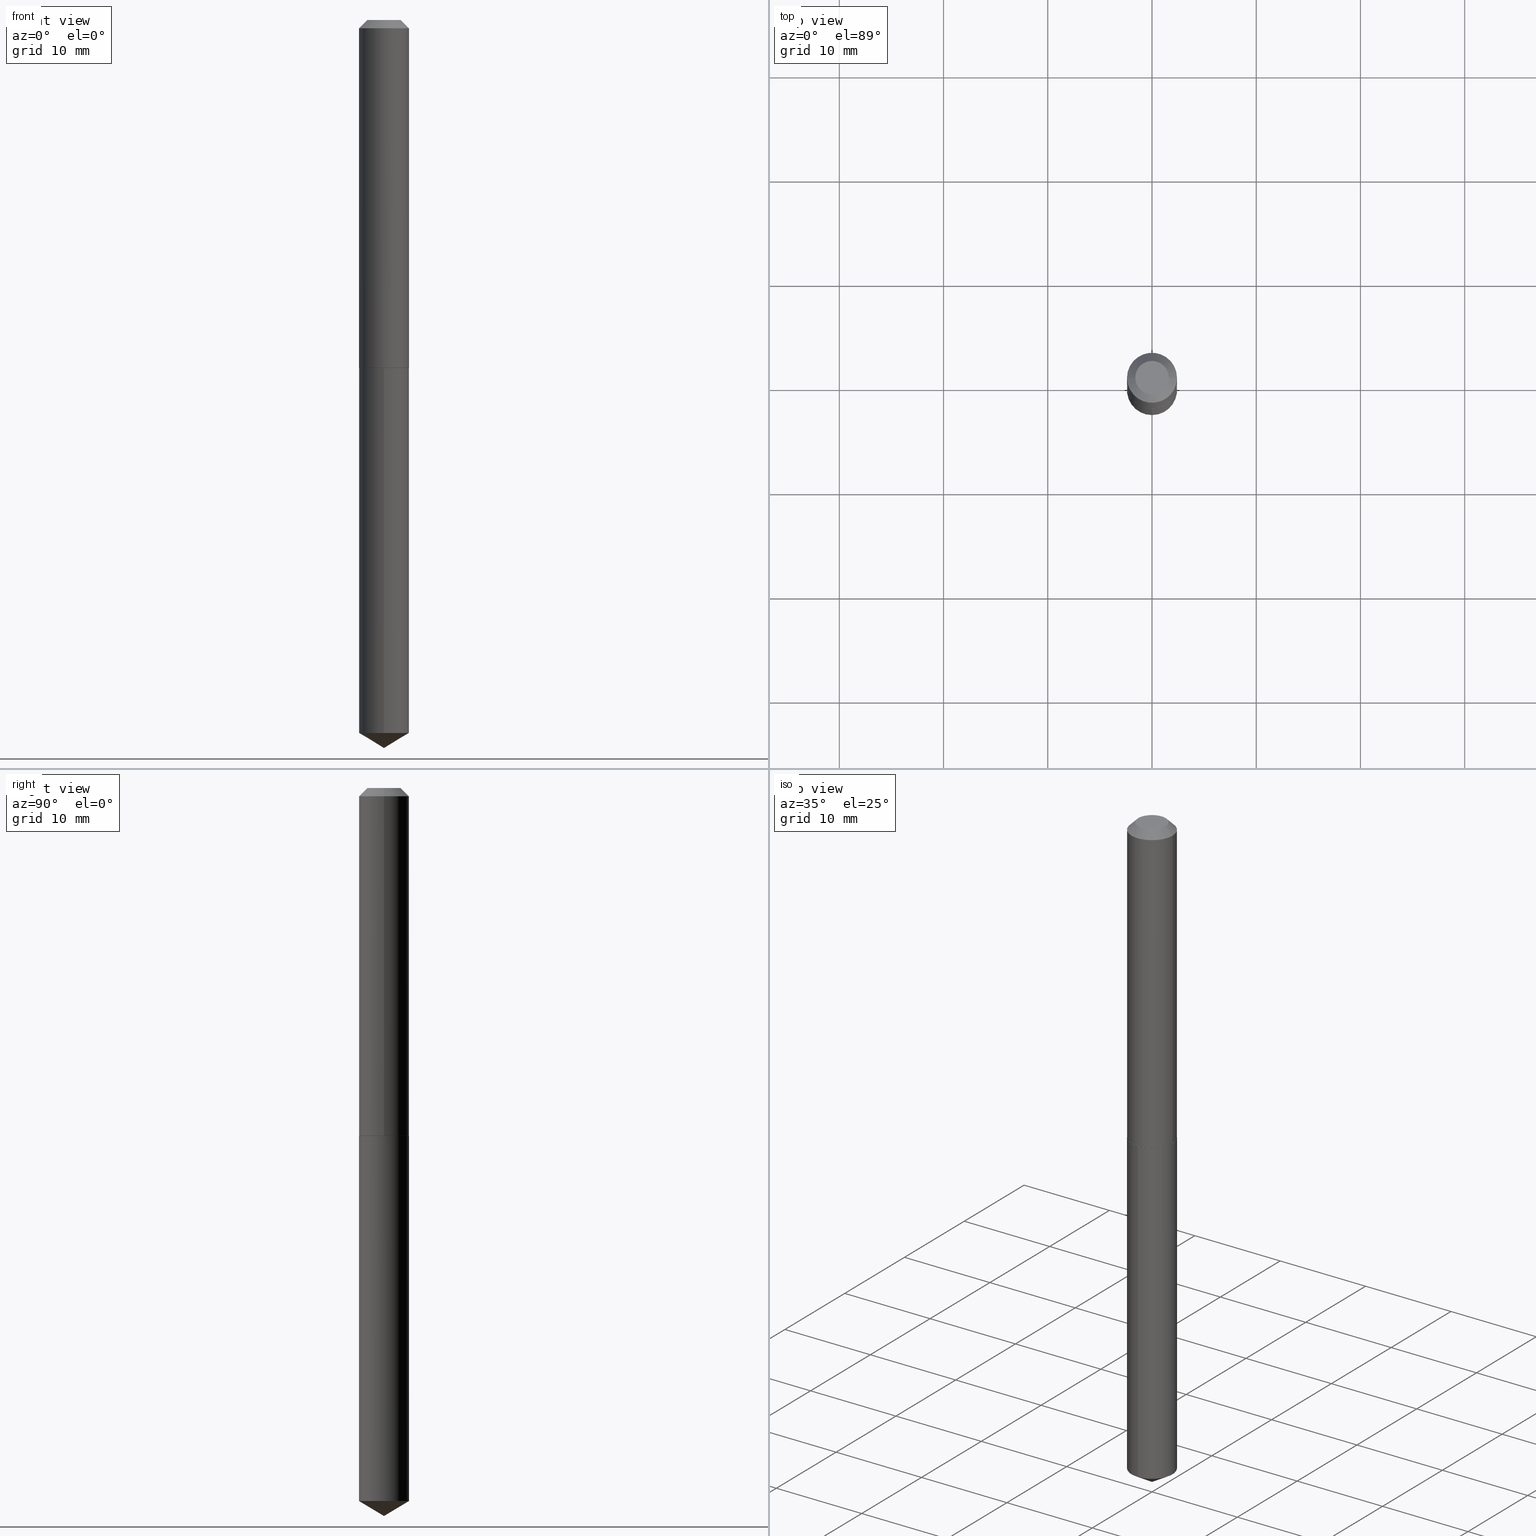
[diagram: canonical four-view strip — front | top / right | iso, engineering-drawing reading convention]
A machine part, canonical four-view strip (front | top / right | iso — engineering-drawing reading convention). The complete STEP part file that produces these views, byte-faithful:
ISO-10303-21;
HEADER;
FILE_DESCRIPTION (( 'STEP AP203' ),
    '1' );
FILE_NAME ('57156.STEP',
    '2024-04-22T23:05:01',
    ( '' ),
    ( '' ),
    'SwSTEP 2.0',
    'SolidWorks 2023',
    '' );
FILE_SCHEMA (( 'CONFIG_CONTROL_DESIGN' ));
ENDSEC;

DATA;
#1 = EDGE_CURVE ( 'NONE', #158, #187, #278, .T. ) ;
#2 = DIRECTION ( 'NONE',  ( -2.445534147600870252E-29, 3.491387766216812550E-15, 1.000000000000000000 ) ) ;
#3 = LINE ( 'NONE', #206, #215 ) ;
#4 = EDGE_CURVE ( 'NONE', #346, #385, #99, .T. ) ;
#5 = ORIENTED_EDGE ( 'NONE', *, *, #45, .T. ) ;
#6 = ORIENTED_EDGE ( 'NONE', *, *, #4, .T. ) ;
#7 = AXIS2_PLACEMENT_3D ( 'NONE', #58, #384, #270 ) ;
#8 = ORIENTED_EDGE ( 'NONE', *, *, #124, .T. ) ;
#9 = MANIFOLD_SOLID_BREP ( 'Body-Move/Copy2[2]', #211 ) ;
#10 = EDGE_LOOP ( 'NONE', ( #8, #142, #80, #193 ) ) ;
#11 = MANIFOLD_SOLID_BREP ( 'Body-Move/Copy2[1]', #245 ) ;
#12 = COORDINATED_UNIVERSAL_TIME_OFFSET ( 5, 0, .BEHIND. ) ;
#13 = ORIENTED_EDGE ( 'NONE', *, *, #218, .T. ) ;
#14 = VECTOR ( 'NONE', #115, 39.37007874015748143 ) ;
#15 = DIRECTION ( 'NONE',  ( 2.438088387897960049E-29, -3.491481338843145188E-15, -1.000000000000000000 ) ) ;
#16 = PERSON_AND_ORGANIZATION ( #149, #274 ) ;
#17 = ORIENTED_EDGE ( 'NONE', *, *, #275, .T. ) ;
#18 = APPROVAL ( #255, 'UNSPECIFIED' ) ;
#19 = FACE_OUTER_BOUND ( 'NONE', #283, .T. ) ;
#20 = CARTESIAN_POINT ( 'NONE',  ( 3.213346011327270188E-29, -4.587806479239894394E-15, -1.314000000000000279 ) ) ;
#21 = CARTESIAN_POINT ( 'NONE',  ( 6.725047188661843628E-29, -9.601562265958238958E-15, -2.750000000000000000 ) ) ;
#22 = DIRECTION ( 'NONE',  ( 0.7071067811864267805, -2.468850131080992517E-15, 0.7071067811866682540 ) ) ;
#23 = CARTESIAN_POINT ( 'NONE',  ( -0.09400000000000013900, -3.917247080451287637E-15, -1.314000000000000279 ) ) ;
#24 = CARTESIAN_POINT ( 'NONE',  ( -0.09449999999999998679, 5.507811812025032100E-16, -0.03125000000000019429 ) ) ;
#25 = CARTESIAN_POINT ( 'NONE',  ( 6.586272369493861855E-29, -9.403193675859416416E-15, -2.693218671501895756 ) ) ;
#26 = EDGE_CURVE ( 'NONE', #369, #212, #123, .T. ) ;
#27 = VERTEX_POINT ( 'NONE', #226 ) ;
#28 = APPLICATION_CONTEXT ( 'configuration controlled 3d designs of mechanical parts and assemblies' ) ;
#29 = CIRCLE ( 'NONE', #130, 0.09449999999999998679 ) ;
#30 = DIRECTION ( 'NONE',  ( -2.445468806185136597E-29, 3.491481338843145583E-15, 1.000000000000000000 ) ) ;
#31 = CONICAL_SURFACE ( 'NONE', #387, 0.09449999999999998679, 0.7853981633974452814 ) ;
#32 =( GEOMETRIC_REPRESENTATION_CONTEXT ( 3 ) GLOBAL_UNCERTAINTY_ASSIGNED_CONTEXT ( ( #71 ) ) GLOBAL_UNIT_ASSIGNED_CONTEXT ( ( #88, #389, #242 ) ) REPRESENTATION_CONTEXT ( 'NONE', 'WORKASPACE' ) );
#33 = ADVANCED_FACE ( 'NONE', ( #229 ), #83, .T. ) ;
#34 = LINE ( 'NONE', #24, #388 ) ;
#35 = CARTESIAN_POINT ( 'NONE',  ( -6.598899730413198687E-16, -0.09450000000000458034, -1.313999999999999613 ) ) ;
#36 = CALENDAR_DATE ( 2024, 22, 4 ) ;
#37 = EDGE_CURVE ( 'NONE', #158, #249, #259, .T. ) ;
#38 = EDGE_LOOP ( 'NONE', ( #44, #100 ) ) ;
#39 = AXIS2_PLACEMENT_3D ( 'NONE', #20, #199, #383 ) ;
#40 = ORIENTED_EDGE ( 'NONE', *, *, #41, .T. ) ;
#41 = EDGE_CURVE ( 'NONE', #46, #385, #220, .T. ) ;
#42 = DIRECTION ( 'NONE',  ( -1.000000000000000000, 6.982962677686265922E-15, -4.876176775795935793E-29 ) ) ;
#43 = ORIENTED_EDGE ( 'NONE', *, *, #1, .T. ) ;
#44 = ORIENTED_EDGE ( 'NONE', *, *, #356, .T. ) ;
#45 = EDGE_CURVE ( 'NONE', #385, #346, #301, .T. ) ;
#46 = VERTEX_POINT ( 'NONE', #169 ) ;
#47 = VECTOR ( 'NONE', #119, 39.37007874015748143 ) ;
#48 = CC_DESIGN_APPROVAL ( #18, ( #108 ) ) ;
#49 = DIRECTION ( 'NONE',  ( 1.000000000000000000, -6.982962677686265922E-15, 0.000000000000000000 ) ) ;
#50 = DIRECTION ( 'NONE',  ( -6.982962677686265922E-15, -1.000000000000000000, 2.890844437739961472E-15 ) ) ;
#51 = EDGE_LOOP ( 'NONE', ( #76, #43, #102, #370 ) ) ;
#52 = DIRECTION ( 'NONE',  ( 2.445534147600870252E-29, -3.491387766216812156E-15, -1.000000000000000000 ) ) ;
#53 = PERSON_AND_ORGANIZATION_ROLE ( 'classification_officer' ) ;
#54 = CARTESIAN_POINT ( 'NONE',  ( -6.598899730413198687E-16, -0.09450000000000458034, -1.313999999999999613 ) ) ;
#55 = VECTOR ( 'NONE', #349, 39.37007874015748143 ) ;
#56 = AXIS2_PLACEMENT_3D ( 'NONE', #179, #297, #329 ) ;
#57 = ADVANCED_FACE ( 'NONE', ( #354 ), #154, .T. ) ;
#58 = CARTESIAN_POINT ( 'NONE',  ( 0.000000000000000000, 0.000000000000000000, 0.000000000000000000 ) ) ;
#59 = DIRECTION ( 'NONE',  ( 1.000000000000000000, -6.982962677686266711E-15, 0.000000000000000000 ) ) ;
#60 = FACE_OUTER_BOUND ( 'NONE', #38, .T. ) ;
#61 = APPLICATION_PROTOCOL_DEFINITION ( 'international standard', 'config_control_design', 1994, #28 ) ;
#62 = DIRECTION ( 'NONE',  ( -6.982962677686265922E-15, -1.000000000000000000, 2.890844437739961472E-15 ) ) ;
#63 = DATE_TIME_ROLE ( 'classification_date' ) ;
#64 = EDGE_CURVE ( 'NONE', #369, #249, #305, .T. ) ;
#65 = CARTESIAN_POINT ( 'NONE',  ( -0.06324999999999998679, 4.962267852830797444E-16, 9.184850993277015254E-20 ) ) ;
#66 = CYLINDRICAL_SURFACE ( 'NONE', #7, 0.09450000000000008393 ) ;
#67 = APPROVAL_PERSON_ORGANIZATION ( #299, #96, #314 ) ;
#68 = PLANE ( 'NONE',  #195 ) ;
#69 = SECURITY_CLASSIFICATION ( '', '', #189 ) ;
#70 = ORIENTED_EDGE ( 'NONE', *, *, #26, .F. ) ;
#71 = UNCERTAINTY_MEASURE_WITH_UNIT (LENGTH_MEASURE( 1.000000000000000082E-05 ), #88, 'distance_accuracy_value', 'NONE');
#72 = ORIENTED_EDGE ( 'NONE', *, *, #218, .F. ) ;
#73 = EDGE_CURVE ( 'NONE', #27, #212, #75, .T. ) ;
#74 = PERSON_AND_ORGANIZATION_ROLE ( 'design_supplier' ) ;
#75 = CIRCLE ( 'NONE', #184, 0.09449999999999998679 ) ;
#76 = ORIENTED_EDGE ( 'NONE', *, *, #37, .F. ) ;
#77 = AXIS2_PLACEMENT_3D ( 'NONE', #304, #360, #94 ) ;
#78 = ORIENTED_EDGE ( 'NONE', *, *, #45, .F. ) ;
#79 = EDGE_CURVE ( 'NONE', #187, #369, #291, .T. ) ;
#80 = ORIENTED_EDGE ( 'NONE', *, *, #64, .F. ) ;
#81 = APPROVAL_ROLE ( '' ) ;
#82 = CARTESIAN_POINT ( 'NONE',  ( 3.212123276924177386E-29, -4.586060738570472102E-15, -1.313500000000000112 ) ) ;
#83 = CONICAL_SURFACE ( 'NONE', #340, 0.09450000000000013944, 0.7853981633972775267 ) ;
#84 = APPROVAL_PERSON_ORGANIZATION ( #16, #18, #81 ) ;
#85 = PERSON_AND_ORGANIZATION ( #149, #274 ) ;
#86 = CARTESIAN_POINT ( 'NONE',  ( 3.212123276924177386E-29, -4.586060738570472102E-15, -1.313500000000000112 ) ) ;
#87 = LINE ( 'NONE', #181, #293 ) ;
#88 =( CONVERSION_BASED_UNIT ( 'INCH', #120 ) LENGTH_UNIT ( ) NAMED_UNIT ( #132 ) );
#89 = DIRECTION ( 'NONE',  ( 1.000000000000000000, -6.982962677686265922E-15, 0.000000000000000000 ) ) ;
#90 = CIRCLE ( 'NONE', #137, 0.09449999999999998679 ) ;
#91 = AXIS2_PLACEMENT_3D ( 'NONE', #302, #98, #153 ) ;
#92 = DIRECTION ( 'NONE',  ( -2.445534147600870252E-29, 3.491387766216812550E-15, 1.000000000000000000 ) ) ;
#93 = DIRECTION ( 'NONE',  ( 1.000000000000000000, -6.982962677686265922E-15, 4.876176775795935793E-29 ) ) ;
#94 = DIRECTION ( 'NONE',  ( 1.000000000000000000, 0.000000000000000000, 0.000000000000000000 ) ) ;
#95 = FACE_OUTER_BOUND ( 'NONE', #107, .T. ) ;
#96 = APPROVAL ( #219, 'UNSPECIFIED' ) ;
#97 = AXIS2_PLACEMENT_3D ( 'NONE', #221, #145, #50 ) ;
#98 = DIRECTION ( 'NONE',  ( -2.445468806185136597E-29, 3.491481338843145583E-15, 1.000000000000000000 ) ) ;
#99 = CIRCLE ( 'NONE', #150, 0.09449999999999998679 ) ;
#100 = ORIENTED_EDGE ( 'NONE', *, *, #280, .T. ) ;
#101 = ADVANCED_FACE ( 'NONE', ( #113 ), #256, .T. ) ;
#102 = ORIENTED_EDGE ( 'NONE', *, *, #79, .T. ) ;
#103 = DESIGN_CONTEXT ( 'detailed design', #28, 'design' ) ;
#104 = ORIENTED_EDGE ( 'NONE', *, *, #298, .T. ) ;
#105 = CARTESIAN_POINT ( 'NONE',  ( -2.246126659431945618E-48, 3.206873584422659321E-34, 9.184850993604946956E-20 ) ) ;
#106 = PERSON_AND_ORGANIZATION_ROLE ( 'creator' ) ;
#107 = EDGE_LOOP ( 'NONE', ( #5, #6 ) ) ;
#108 = PRODUCT_DEFINITION_FORMATION_WITH_SPECIFIED_SOURCE ( 'ANY', '', #182, .NOT_KNOWN. ) ;
#109 = EDGE_CURVE ( 'NONE', #135, #46, #90, .T. ) ;
#110 = ORIENTED_EDGE ( 'NONE', *, *, #41, .F. ) ;
#111 = CARTESIAN_POINT ( 'NONE',  ( 3.213346011327269067E-29, -4.587806479239893606E-15, -1.314000000000000057 ) ) ;
#112 = PERSON_AND_ORGANIZATION ( #149, #274 ) ;
#113 = FACE_OUTER_BOUND ( 'NONE', #310, .T. ) ;
#114 = CIRCLE ( 'NONE', #330, 0.09400000000000013900 ) ;
#115 = DIRECTION ( 'NONE',  ( -2.445468806185136877E-29, 3.491481338843145188E-15, 1.000000000000000000 ) ) ;
#116 = FACE_OUTER_BOUND ( 'NONE', #216, .T. ) ;
#117 = CC_DESIGN_DATE_AND_TIME_ASSIGNMENT ( #258, #348, ( #227 ) ) ;
#118 = ORIENTED_EDGE ( 'NONE', *, *, #4, .F. ) ;
#119 = DIRECTION ( 'NONE',  ( -2.445534147600870252E-29, 3.491387766216812156E-15, 1.000000000000000000 ) ) ;
#120 = LENGTH_MEASURE_WITH_UNIT ( LENGTH_MEASURE( 0.02539999999999999897 ), #190 );
#121 = CARTESIAN_POINT ( 'NONE',  ( 6.714628852933602544E-16, 0.09449999999999056377, -2.693218671501896200 ) ) ;
#122 = CARTESIAN_POINT ( 'NONE',  ( 3.212123276924177386E-29, -4.586060738570472102E-15, -1.313500000000000112 ) ) ;
#123 = LINE ( 'NONE', #225, #260 ) ;
#124 = EDGE_CURVE ( 'NONE', #187, #158, #114, .T. ) ;
#125 = CARTESIAN_POINT ( 'NONE',  ( 6.586272369493861855E-29, -9.403193675859416416E-15, -2.693218671501895756 ) ) ;
#126 = CC_DESIGN_SECURITY_CLASSIFICATION ( #69, ( #108 ) ) ;
#127 = CC_DESIGN_PERSON_AND_ORGANIZATION_ASSIGNMENT ( #281, #53, ( #69 ) ) ;
#128 = PERSON_AND_ORGANIZATION ( #149, #274 ) ;
#129 = EDGE_LOOP ( 'NONE', ( #213, #339, #72 ) ) ;
#130 = AXIS2_PLACEMENT_3D ( 'NONE', #125, #2, #361 ) ;
#131 = ORIENTED_EDGE ( 'NONE', *, *, #26, .T. ) ;
#132 = DIMENSIONAL_EXPONENTS ( 1.000000000000000000, 0.000000000000000000, 0.000000000000000000, 0.000000000000000000, 0.000000000000000000, 0.000000000000000000, 0.000000000000000000 ) ;
#133 = ORIENTED_EDGE ( 'NONE', *, *, #109, .T. ) ;
#134 = COORDINATED_UNIVERSAL_TIME_OFFSET ( 5, 0, .BEHIND. ) ;
#135 = VERTEX_POINT ( 'NONE', #121 ) ;
#136 = DIRECTION ( 'NONE',  ( -2.445468806185136597E-29, 3.491481338843145583E-15, 1.000000000000000000 ) ) ;
#137 = AXIS2_PLACEMENT_3D ( 'NONE', #25, #294, #147 ) ;
#138 = ADVANCED_FACE ( 'NONE', ( #287 ), #367, .T. ) ;
#139 = CARTESIAN_POINT ( 'NONE',  ( 0.06324999999999998679, -5.956761754936540147E-16, 9.184850993967601972E-20 ) ) ;
#140 = CARTESIAN_POINT ( 'NONE',  ( 7.642090019328598283E-31, -1.091087918388489651E-16, -0.03125000000000019429 ) ) ;
#141 = DIRECTION ( 'NONE',  ( 2.445468806185136597E-29, -3.491481338843145583E-15, -1.000000000000000000 ) ) ;
#142 = ORIENTED_EDGE ( 'NONE', *, *, #37, .T. ) ;
#143 = CARTESIAN_POINT ( 'NONE',  ( 0.000000000000000000, 0.000000000000000000, 0.000000000000000000 ) ) ;
#144 = AXIS2_PLACEMENT_3D ( 'NONE', #290, #262, #271 ) ;
#145 = DIRECTION ( 'NONE',  ( -2.445534147600870252E-29, 3.491387766216812550E-15, 1.000000000000000000 ) ) ;
#146 = FACE_OUTER_BOUND ( 'NONE', #382, .T. ) ;
#147 = DIRECTION ( 'NONE',  ( -6.982962677686265922E-15, -1.000000000000000000, 5.781688875479922944E-15 ) ) ;
#148 = ORIENTED_EDGE ( 'NONE', *, *, #73, .F. ) ;
#149 = PERSON ( 'UNSPECIFIED', 'UNSPECIFIED', 'UNSPECIFIED', ('UNSPECIFIED'), ('UNSPECIFIED'), ('UNSPECIFIED') ) ;
#150 = AXIS2_PLACEMENT_3D ( 'NONE', #111, #353, #165 ) ;
#151 = AXIS2_PLACEMENT_3D ( 'NONE', #105, #136, #251 ) ;
#152 = DIRECTION ( 'NONE',  ( -0.7071067811865453523, 2.468850131082234184E-15, -0.7071067811865496822 ) ) ;
#153 = DIRECTION ( 'NONE',  ( 1.000000000000000000, -6.982962677686266711E-15, 0.000000000000000000 ) ) ;
#154 = CONICAL_SURFACE ( 'NONE', #177, 0.09450000000000013944, 0.7853981633972775267 ) ;
#155 = DATE_AND_TIME ( #36, #267 ) ;
#156 = EDGE_CURVE ( 'NONE', #249, #27, #344, .T. ) ;
#157 = SHAPE_DEFINITION_REPRESENTATION ( #234, #345 ) ;
#158 = VERTEX_POINT ( 'NONE', #23 ) ;
#159 = CC_DESIGN_APPROVAL ( #96, ( #227 ) ) ;
#160 = DATE_AND_TIME ( #375, #252 ) ;
#161 = VERTEX_POINT ( 'NONE', #139 ) ;
#162 = APPROVAL_DATE_TIME ( #160, #96 ) ;
#163 = ORIENTED_EDGE ( 'NONE', *, *, #343, .T. ) ;
#164 = ORIENTED_EDGE ( 'NONE', *, *, #366, .T. ) ;
#165 = DIRECTION ( 'NONE',  ( -6.982962677686265922E-15, -1.000000000000000000, 2.890844437739961472E-15 ) ) ;
#166 = CIRCLE ( 'NONE', #91, 0.09449999999999998679 ) ;
#167 = CALENDAR_DATE ( 2024, 22, 4 ) ;
#168 = FACE_OUTER_BOUND ( 'NONE', #217, .T. ) ;
#169 = CARTESIAN_POINT ( 'NONE',  ( -6.598899730412861449E-16, -0.09450000000000939593, -2.693218671501894868 ) ) ;
#170 = DIRECTION ( 'NONE',  ( -2.445468806185136597E-29, 3.491481338843145583E-15, 1.000000000000000000 ) ) ;
#171 = DIRECTION ( 'NONE',  ( -2.445468806185136597E-29, 3.491481338843145583E-15, 1.000000000000000000 ) ) ;
#172 = EDGE_CURVE ( 'NONE', #135, #346, #288, .T. ) ;
#173 = DIRECTION ( 'NONE',  ( -6.982962677686265922E-15, -1.000000000000000000, 2.890844437739961472E-15 ) ) ;
#174 = PLANE ( 'NONE',  #374 ) ;
#175 = CARTESIAN_POINT ( 'NONE',  ( -2.246126659431945618E-48, 3.206873584422659321E-34, 9.184850993604946956E-20 ) ) ;
#176 = PERSON_AND_ORGANIZATION ( #149, #274 ) ;
#177 = AXIS2_PLACEMENT_3D ( 'NONE', #86, #266, #89 ) ;
#178 = CIRCLE ( 'NONE', #279, 0.09450000000000013944 ) ;
#179 = CARTESIAN_POINT ( 'NONE',  ( -8.955573890550805138E-28, 1.278547719568512064E-13, 36.62007874015748143 ) ) ;
#180 = CC_DESIGN_PERSON_AND_ORGANIZATION_ASSIGNMENT ( #128, #326, ( #182 ) ) ;
#181 = CARTESIAN_POINT ( 'NONE',  ( 0.09449999999999998679, -7.574258526282586471E-16, -0.03125000000000019429 ) ) ;
#182 = PRODUCT ( '57156', '57156', '', ( #183 ) ) ;
#183 = MECHANICAL_CONTEXT ( 'NONE', #376, 'mechanical' ) ;
#184 = AXIS2_PLACEMENT_3D ( 'NONE', #359, #315, #59 ) ;
#185 = ADVANCED_FACE ( 'NONE', ( #19 ), #31, .T. ) ;
#186 = ORIENTED_EDGE ( 'NONE', *, *, #247, .F. ) ;
#187 = VERTEX_POINT ( 'NONE', #347 ) ;
#188 = CIRCLE ( 'NONE', #151, 0.06324999999999998679 ) ;
#189 = SECURITY_CLASSIFICATION_LEVEL ( 'unclassified' ) ;
#190 =( LENGTH_UNIT ( ) NAMED_UNIT ( * ) SI_UNIT ( $, .METRE. ) );
#191 = ORIENTED_EDGE ( 'NONE', *, *, #73, .T. ) ;
#192 = CALENDAR_DATE ( 2024, 22, 4 ) ;
#193 = ORIENTED_EDGE ( 'NONE', *, *, #79, .F. ) ;
#194 = COORDINATED_UNIVERSAL_TIME_OFFSET ( 5, 0, .BEHIND. ) ;
#195 = AXIS2_PLACEMENT_3D ( 'NONE', #232, #268, #273 ) ;
#196 = VECTOR ( 'NONE', #380, 39.37007874015748143 ) ;
#197 = DIRECTION ( 'NONE',  ( -2.445468806185136597E-29, 3.491481338843145583E-15, 1.000000000000000000 ) ) ;
#198 = PERSON_AND_ORGANIZATION_ROLE ( 'creator' ) ;
#199 = DIRECTION ( 'NONE',  ( -2.445468806185136597E-29, 3.491481338843145583E-15, 1.000000000000000000 ) ) ;
#200 = DIRECTION ( 'NONE',  ( -2.445534147600870252E-29, 3.491387766216812550E-15, 1.000000000000000000 ) ) ;
#201 = CARTESIAN_POINT ( 'NONE',  ( 3.213346011327270188E-29, -4.587806479239894394E-15, -1.314000000000000279 ) ) ;
#202 = AXIS2_PLACEMENT_3D ( 'NONE', #175, #30, #224 ) ;
#203 = ADVANCED_FACE ( 'NONE', ( #377 ), #265, .T. ) ;
#204 = CALENDAR_DATE ( 2024, 22, 4 ) ;
#205 = DIRECTION ( 'NONE',  ( -2.445468806185136597E-29, 3.491481338843145583E-15, 1.000000000000000000 ) ) ;
#206 = CARTESIAN_POINT ( 'NONE',  ( 6.725220411659896381E-29, -9.601316357096234021E-15, -2.750000000000000000 ) ) ;
#207 = CARTESIAN_POINT ( 'NONE',  ( 3.213346011327269067E-29, -4.587806479239893606E-15, -1.314000000000000057 ) ) ;
#208 = ADVANCED_FACE ( 'NONE', ( #168 ), #309, .T. ) ;
#209 = APPROVAL_PERSON_ORGANIZATION ( #176, #333, #332 ) ;
#210 = ADVANCED_FACE ( 'NONE', ( #235 ), #68, .F. ) ;
#211 = CLOSED_SHELL ( 'NONE', ( #185, #101, #57, #210, #33, #284, #138, #254 ) ) ;
#212 = VERTEX_POINT ( 'NONE', #363 ) ;
#213 = ORIENTED_EDGE ( 'NONE', *, *, #275, .F. ) ;
#214 = APPROVAL_DATE_TIME ( #379, #18 ) ;
#215 = VECTOR ( 'NONE', #241, 39.37007874015748143 ) ;
#216 = EDGE_LOOP ( 'NONE', ( #13, #285, #78, #110 ) ) ;
#217 = EDGE_LOOP ( 'NONE', ( #248, #17, #282 ) ) ;
#218 = EDGE_CURVE ( 'NONE', #46, #135, #29, .T. ) ;
#219 = APPROVAL_STATUS ( 'not_yet_approved' ) ;
#220 = LINE ( 'NONE', #54, #55 ) ;
#221 = CARTESIAN_POINT ( 'NONE',  ( 3.213346011327269067E-29, -4.587806479239893606E-15, -1.314000000000000057 ) ) ;
#222 = CARTESIAN_POINT ( 'NONE',  ( 3.213346011327269067E-29, -4.587806479239893606E-15, -1.314000000000000057 ) ) ;
#223 = DIRECTION ( 'NONE',  ( -1.000000000000000000, 6.982962677686266711E-15, 0.000000000000000000 ) ) ;
#224 = DIRECTION ( 'NONE',  ( 1.000000000000000000, -6.982962677686267499E-15, 4.876183683204856601E-29 ) ) ;
#225 = CARTESIAN_POINT ( 'NONE',  ( 0.09450000000000008393, -6.598899730413527051E-16, 4.607987053127163164E-30 ) ) ;
#226 = CARTESIAN_POINT ( 'NONE',  ( -0.09449999999999998679, -1.676121879911364540E-15, -0.03125000000000019429 ) ) ;
#227 = PRODUCT_DEFINITION ( 'UNKNOWN', '', #108, #103 ) ;
#228 = DIRECTION ( 'NONE',  ( 1.000000000000000000, -6.982962677686265922E-15, 0.000000000000000000 ) ) ;
#229 = FACE_OUTER_BOUND ( 'NONE', #51, .T. ) ;
#230 = AXIS2_PLACEMENT_3D ( 'NONE', #207, #52, #390 ) ;
#231 = CYLINDRICAL_SURFACE ( 'NONE', #331, 0.09449999999999998679 ) ;
#232 = CARTESIAN_POINT ( 'NONE',  ( 5.467098569376222711E-30, -8.406581227830145781E-15, -1.314000000000000279 ) ) ;
#233 = CARTESIAN_POINT ( 'NONE',  ( 6.725218905902392492E-29, -9.601316357096234021E-15, -2.750000000000000000 ) ) ;
#234 = PRODUCT_DEFINITION_SHAPE ( 'NONE', 'NONE',  #227 ) ;
#235 = FACE_OUTER_BOUND ( 'NONE', #311, .T. ) ;
#236 = DIRECTION ( 'NONE',  ( 0.7071067811865453523, -7.319954787623248157E-15, -0.7071067811865496822 ) ) ;
#237 = AXIS2_PLACEMENT_3D ( 'NONE', #222, #200, #173 ) ;
#238 = CC_DESIGN_APPROVAL ( #333, ( #69 ) ) ;
#239 = DIRECTION ( 'NONE',  ( 2.445468806185136597E-29, -3.491481338843145583E-15, -1.000000000000000000 ) ) ;
#240 = EDGE_CURVE ( 'NONE', #338, #135, #3, .T. ) ;
#241 = DIRECTION ( 'NONE',  ( 6.090539988449783169E-15, 0.8571673007021145541, 0.5150380749100503808 ) ) ;
#242 =( NAMED_UNIT ( * ) SI_UNIT ( $, .STERADIAN. ) SOLID_ANGLE_UNIT ( ) );
#243 = APPROVAL_DATE_TIME ( #155, #333 ) ;
#244 = VERTEX_POINT ( 'NONE', #65 ) ;
#245 = CLOSED_SHELL ( 'NONE', ( #350, #324, #208, #203, #319 ) ) ;
#246 = ORIENTED_EDGE ( 'NONE', *, *, #124, .F. ) ;
#247 = EDGE_CURVE ( 'NONE', #212, #27, #166, .T. ) ;
#248 = ORIENTED_EDGE ( 'NONE', *, *, #240, .F. ) ;
#249 = VERTEX_POINT ( 'NONE', #323 ) ;
#250 = AXIS2_PLACEMENT_3D ( 'NONE', #143, #351, #93 ) ;
#251 = DIRECTION ( 'NONE',  ( 1.000000000000000000, -6.982962677686267499E-15, 4.876183683204856601E-29 ) ) ;
#252 = LOCAL_TIME ( 19, 5, 1.000000000000000000, #12 ) ;
#253 = ORIENTED_EDGE ( 'NONE', *, *, #64, .T. ) ;
#254 = ADVANCED_FACE ( 'NONE', ( #60 ), #174, .F. ) ;
#255 = APPROVAL_STATUS ( 'not_yet_approved' ) ;
#256 = CYLINDRICAL_SURFACE ( 'NONE', #250, 0.09450000000000008393 ) ;
#257 = LINE ( 'NONE', #21, #313 ) ;
#258 = DATE_AND_TIME ( #192, #286 ) ;
#259 = LINE ( 'NONE', #295, #196 ) ;
#260 = VECTOR ( 'NONE', #261, 39.37007874015748143 ) ;
#261 = DIRECTION ( 'NONE',  ( -2.445468806185136877E-29, 3.491481338843145188E-15, 1.000000000000000000 ) ) ;
#262 = DIRECTION ( 'NONE',  ( -2.445534147600870252E-29, 3.491387766216812550E-15, 1.000000000000000000 ) ) ;
#263 = CC_DESIGN_PERSON_AND_ORGANIZATION_ASSIGNMENT ( #85, #106, ( #227 ) ) ;
#264 = EDGE_LOOP ( 'NONE', ( #276, #133, #40, #118 ) ) ;
#265 = CYLINDRICAL_SURFACE ( 'NONE', #97, 0.09449999999999998679 ) ;
#266 = DIRECTION ( 'NONE',  ( -2.445468806185136597E-29, 3.491481338843145583E-15, 1.000000000000000000 ) ) ;
#267 = LOCAL_TIME ( 19, 5, 1.000000000000000000, #364 ) ;
#268 = DIRECTION ( 'NONE',  ( -2.438088387897960049E-29, 3.491481338843145188E-15, 1.000000000000000000 ) ) ;
#269 = CC_DESIGN_DATE_AND_TIME_ASSIGNMENT ( #328, #63, ( #69 ) ) ;
#270 = DIRECTION ( 'NONE',  ( 1.000000000000000000, -6.982962677686265922E-15, 4.876176775795935793E-29 ) ) ;
#271 = DIRECTION ( 'NONE',  ( -6.982962677686265922E-15, -1.000000000000000000, 3.468864327941586720E-15 ) ) ;
#272 = VECTOR ( 'NONE', #22, 39.37007874015748143 ) ;
#273 = DIRECTION ( 'NONE',  ( 1.000000000000000000, -6.982962677686265922E-15, 4.876176775795935793E-29 ) ) ;
#274 = ORGANIZATION ( 'UNSPECIFIED', 'UNSPECIFIED', '' ) ;
#275 = EDGE_CURVE ( 'NONE', #338, #46, #257, .T. ) ;
#276 = ORIENTED_EDGE ( 'NONE', *, *, #172, .F. ) ;
#277 = ORIENTED_EDGE ( 'NONE', *, *, #356, .F. ) ;
#278 = CIRCLE ( 'NONE', #39, 0.09400000000000013900 ) ;
#279 = AXIS2_PLACEMENT_3D ( 'NONE', #122, #170, #228 ) ;
#280 = EDGE_CURVE ( 'NONE', #161, #244, #188, .T. ) ;
#281 = PERSON_AND_ORGANIZATION ( #149, #274 ) ;
#282 = ORIENTED_EDGE ( 'NONE', *, *, #109, .F. ) ;
#283 = EDGE_LOOP ( 'NONE', ( #307, #164, #308, #320 ) ) ;
#284 = ADVANCED_FACE ( 'NONE', ( #146 ), #66, .T. ) ;
#285 = ORIENTED_EDGE ( 'NONE', *, *, #172, .T. ) ;
#286 = LOCAL_TIME ( 19, 5, 1.000000000000000000, #134 ) ;
#287 = FACE_OUTER_BOUND ( 'NONE', #312, .T. ) ;
#288 = LINE ( 'NONE', #321, #47 ) ;
#289 = ORIENTED_EDGE ( 'NONE', *, *, #1, .F. ) ;
#290 = CARTESIAN_POINT ( 'NONE',  ( -8.955573890550805138E-28, 1.278547719568512064E-13, 36.62007874015748143 ) ) ;
#291 = LINE ( 'NONE', #318, #272 ) ;
#292 = PRODUCT_RELATED_PRODUCT_CATEGORY ( 'detail', '', ( #182 ) ) ;
#293 = VECTOR ( 'NONE', #236, 39.37007874015748143 ) ;
#294 = DIRECTION ( 'NONE',  ( -2.445534147600870252E-29, 3.491387766216812550E-15, 1.000000000000000000 ) ) ;
#295 = CARTESIAN_POINT ( 'NONE',  ( -0.09450000000000013944, -3.914597853277176436E-15, -1.313500000000000112 ) ) ;
#296 = CARTESIAN_POINT ( 'NONE',  ( -1.123063329715972809E-48, 1.603436792211329661E-34, 4.592425496802473478E-20 ) ) ;
#297 = DIRECTION ( 'NONE',  ( -2.445534147600870252E-29, 3.491387766216812550E-15, 1.000000000000000000 ) ) ;
#298 = EDGE_CURVE ( 'NONE', #249, #369, #178, .T. ) ;
#299 = PERSON_AND_ORGANIZATION ( #149, #274 ) ;
#300 = CARTESIAN_POINT ( 'NONE',  ( 6.714628852933606489E-16, 0.09449999999999539324, -1.314000000000000279 ) ) ;
#301 = CIRCLE ( 'NONE', #237, 0.09449999999999998679 ) ;
#302 = CARTESIAN_POINT ( 'NONE',  ( 7.642090019328598283E-31, -1.091087918388489651E-16, -0.03125000000000019429 ) ) ;
#303 = CARTESIAN_POINT ( 'NONE',  ( 0.09450000000000013944, -5.245950711611824906E-15, -1.313500000000000112 ) ) ;
#304 = CARTESIAN_POINT ( 'NONE',  ( 0.000000000000000000, 0.000000000000000000, 0.000000000000000000 ) ) ;
#305 = CIRCLE ( 'NONE', #373, 0.09450000000000013944 ) ;
#306 = LOCAL_TIME ( 19, 5, 1.000000000000000000, #194 ) ;
#307 = ORIENTED_EDGE ( 'NONE', *, *, #280, .F. ) ;
#308 = ORIENTED_EDGE ( 'NONE', *, *, #247, .T. ) ;
#309 = CONICAL_SURFACE ( 'NONE', #144, 65.52281426576857370, 1.029744258676655422 ) ;
#310 = EDGE_LOOP ( 'NONE', ( #253, #337, #186, #70 ) ) ;
#311 = EDGE_LOOP ( 'NONE', ( #246, #289 ) ) ;
#312 = EDGE_LOOP ( 'NONE', ( #372, #277, #163, #191 ) ) ;
#313 = VECTOR ( 'NONE', #371, 39.37007874015748854 ) ;
#314 = APPROVAL_ROLE ( '' ) ;
#315 = DIRECTION ( 'NONE',  ( -2.445468806185136597E-29, 3.491481338843145583E-15, 1.000000000000000000 ) ) ;
#316 = CARTESIAN_POINT ( 'NONE',  ( -0.09450000000000008393, 6.714628852932952720E-16, -4.648393660290889834E-30 ) ) ;
#317 = PERSON_AND_ORGANIZATION ( #149, #274 ) ;
#318 = CARTESIAN_POINT ( 'NONE',  ( 0.09450000000000013944, -5.245950711611824906E-15, -1.313500000000000112 ) ) ;
#319 = ADVANCED_FACE ( 'NONE', ( #95 ), #357, .F. ) ;
#320 = ORIENTED_EDGE ( 'NONE', *, *, #343, .F. ) ;
#321 = CARTESIAN_POINT ( 'NONE',  ( 6.714628852933266292E-16, 0.09449999999999539324, -1.314000000000000279 ) ) ;
#322 = CARTESIAN_POINT ( 'NONE',  ( 3.212123276924177386E-29, -4.586060738570472102E-15, -1.313500000000000112 ) ) ;
#323 = CARTESIAN_POINT ( 'NONE',  ( -0.09450000000000013944, -3.914597853277176436E-15, -1.313500000000000112 ) ) ;
#324 = ADVANCED_FACE ( 'NONE', ( #327 ), #341, .T. ) ;
#325 = DIRECTION ( 'NONE',  ( 1.000000000000000000, -6.982962677686270655E-15, 0.000000000000000000 ) ) ;
#326 = PERSON_AND_ORGANIZATION_ROLE ( 'design_owner' ) ;
#327 = FACE_OUTER_BOUND ( 'NONE', #129, .T. ) ;
#328 = DATE_AND_TIME ( #204, #381 ) ;
#329 = DIRECTION ( 'NONE',  ( -6.982962677686265922E-15, -1.000000000000000000, 3.468864327941586720E-15 ) ) ;
#330 = AXIS2_PLACEMENT_3D ( 'NONE', #201, #205, #325 ) ;
#331 = AXIS2_PLACEMENT_3D ( 'NONE', #352, #92, #62 ) ;
#332 = APPROVAL_ROLE ( '' ) ;
#333 = APPROVAL ( #334, 'UNSPECIFIED' ) ;
#334 = APPROVAL_STATUS ( 'not_yet_approved' ) ;
#335 = AXIS2_PLACEMENT_3D ( 'NONE', #140, #239, #365 ) ;
#336 = CC_DESIGN_PERSON_AND_ORGANIZATION_ASSIGNMENT ( #317, #74, ( #108 ) ) ;
#337 = ORIENTED_EDGE ( 'NONE', *, *, #156, .T. ) ;
#338 = VERTEX_POINT ( 'NONE', #233 ) ;
#339 = ORIENTED_EDGE ( 'NONE', *, *, #240, .T. ) ;
#340 = AXIS2_PLACEMENT_3D ( 'NONE', #82, #197, #49 ) ;
#341 = CONICAL_SURFACE ( 'NONE', #56, 65.52281426576857370, 1.029744258676655422 ) ;
#342 = ORIENTED_EDGE ( 'NONE', *, *, #156, .F. ) ;
#343 = EDGE_CURVE ( 'NONE', #244, #27, #34, .T. ) ;
#344 = LINE ( 'NONE', #316, #14 ) ;
#345 = ADVANCED_BREP_SHAPE_REPRESENTATION ( '57156', ( #11, #9, #77 ), #32 ) ;
#346 = VERTEX_POINT ( 'NONE', #300 ) ;
#347 = CARTESIAN_POINT ( 'NONE',  ( 0.09400000000000013900, -5.244204970942404980E-15, -1.314000000000000279 ) ) ;
#348 = DATE_TIME_ROLE ( 'creation_date' ) ;
#349 = DIRECTION ( 'NONE',  ( -2.445534147600870252E-29, 3.491387766216812156E-15, 1.000000000000000000 ) ) ;
#350 = ADVANCED_FACE ( 'NONE', ( #116 ), #231, .T. ) ;
#351 = DIRECTION ( 'NONE',  ( -2.445468806185136597E-29, 3.491481338843145583E-15, 1.000000000000000000 ) ) ;
#352 = CARTESIAN_POINT ( 'NONE',  ( 3.213346011327269067E-29, -4.587806479239893606E-15, -1.314000000000000057 ) ) ;
#353 = DIRECTION ( 'NONE',  ( -2.445534147600870252E-29, 3.491387766216812550E-15, 1.000000000000000000 ) ) ;
#354 = FACE_OUTER_BOUND ( 'NONE', #10, .T. ) ;
#355 = CARTESIAN_POINT ( 'NONE',  ( 7.642090019328598283E-31, -1.091087918388489651E-16, -0.03125000000000019429 ) ) ;
#356 = EDGE_CURVE ( 'NONE', #244, #161, #368, .T. ) ;
#357 = PLANE ( 'NONE',  #230 ) ;
#358 = COORDINATED_UNIVERSAL_TIME_OFFSET ( 5, 0, .BEHIND. ) ;
#359 = CARTESIAN_POINT ( 'NONE',  ( 7.642090019328598283E-31, -1.091087918388489651E-16, -0.03125000000000019429 ) ) ;
#360 = DIRECTION ( 'NONE',  ( 0.000000000000000000, 0.000000000000000000, 1.000000000000000000 ) ) ;
#361 = DIRECTION ( 'NONE',  ( -6.982962677686265922E-15, -1.000000000000000000, 5.781688875479922944E-15 ) ) ;
#362 = CC_DESIGN_PERSON_AND_ORGANIZATION_ASSIGNMENT ( #112, #198, ( #108 ) ) ;
#363 = CARTESIAN_POINT ( 'NONE',  ( 0.09449999999999998679, -7.689987648802011155E-16, -0.03125000000000019429 ) ) ;
#364 = COORDINATED_UNIVERSAL_TIME_OFFSET ( 5, 0, .BEHIND. ) ;
#365 = DIRECTION ( 'NONE',  ( -1.000000000000000000, 6.982962677686266711E-15, 0.000000000000000000 ) ) ;
#366 = EDGE_CURVE ( 'NONE', #161, #212, #87, .T. ) ;
#367 = CONICAL_SURFACE ( 'NONE', #335, 0.09449999999999998679, 0.7853981633974452814 ) ;
#368 = CIRCLE ( 'NONE', #202, 0.06324999999999998679 ) ;
#369 = VERTEX_POINT ( 'NONE', #303 ) ;
#370 = ORIENTED_EDGE ( 'NONE', *, *, #298, .F. ) ;
#371 = DIRECTION ( 'NONE',  ( -5.985567269335945224E-15, -0.8571673007021108903, 0.5150380749100562650 ) ) ;
#372 = ORIENTED_EDGE ( 'NONE', *, *, #366, .F. ) ;
#373 = AXIS2_PLACEMENT_3D ( 'NONE', #322, #171, #378 ) ;
#374 = AXIS2_PLACEMENT_3D ( 'NONE', #296, #15, #42 ) ;
#375 = CALENDAR_DATE ( 2024, 22, 4 ) ;
#376 = APPLICATION_CONTEXT ( 'configuration controlled 3d designs of mechanical parts and assemblies' ) ;
#377 = FACE_OUTER_BOUND ( 'NONE', #264, .T. ) ;
#378 = DIRECTION ( 'NONE',  ( 1.000000000000000000, -6.982962677686265922E-15, 0.000000000000000000 ) ) ;
#379 = DATE_AND_TIME ( #167, #306 ) ;
#380 = DIRECTION ( 'NONE',  ( -0.7071067811864267805, 7.493145998869918709E-15, 0.7071067811866682540 ) ) ;
#381 = LOCAL_TIME ( 19, 5, 1.000000000000000000, #358 ) ;
#382 = EDGE_LOOP ( 'NONE', ( #342, #104, #131, #148 ) ) ;
#383 = DIRECTION ( 'NONE',  ( 1.000000000000000000, -6.982962677686270655E-15, 0.000000000000000000 ) ) ;
#384 = DIRECTION ( 'NONE',  ( -2.445468806185136597E-29, 3.491481338843145583E-15, 1.000000000000000000 ) ) ;
#385 = VERTEX_POINT ( 'NONE', #35 ) ;
#386 = APPLICATION_PROTOCOL_DEFINITION ( 'international standard', 'config_control_design', 1994, #376 ) ;
#387 = AXIS2_PLACEMENT_3D ( 'NONE', #355, #141, #223 ) ;
#388 = VECTOR ( 'NONE', #152, 39.37007874015748143 ) ;
#389 =( NAMED_UNIT ( * ) PLANE_ANGLE_UNIT ( ) SI_UNIT ( $, .RADIAN. ) );
#390 = DIRECTION ( 'NONE',  ( 6.982962677686265922E-15, 1.000000000000000000, -3.491387766216812156E-15 ) ) ;
ENDSEC;
END-ISO-10303-21;
